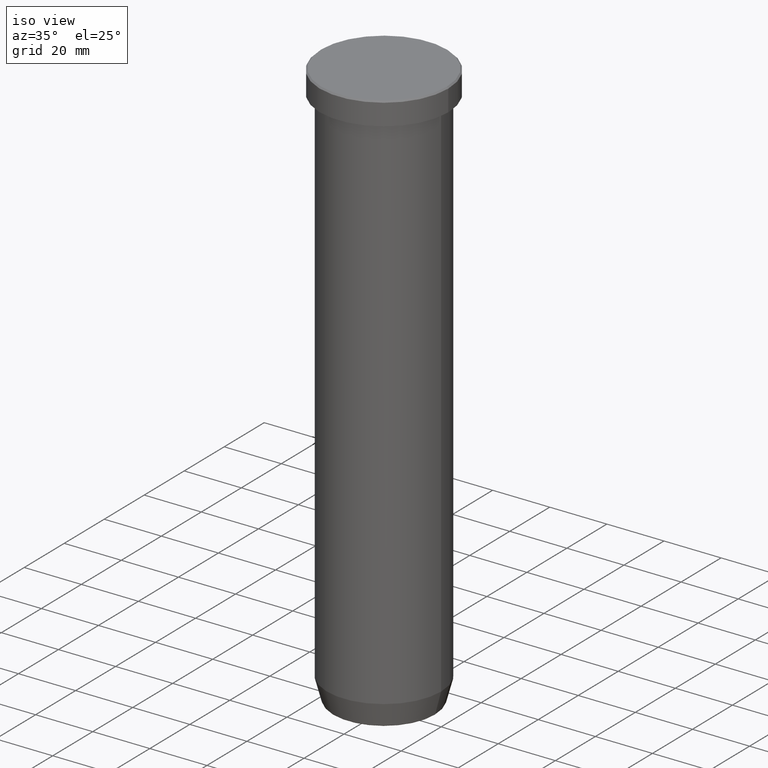
[diagram: clean part render]
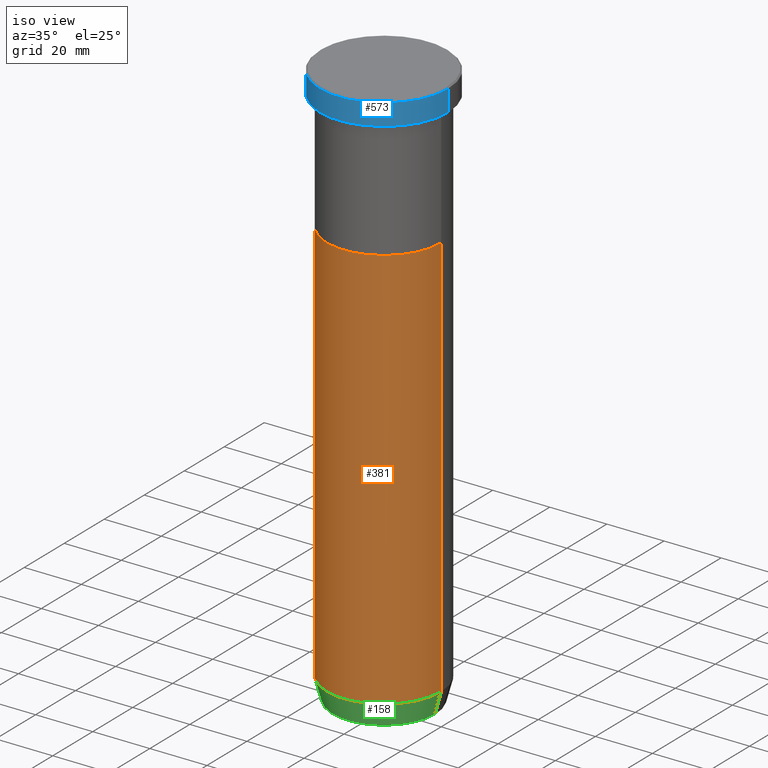
[diagram: same view with three faces highlighted in distinct colors, each labeled with its STEP entity id]
A machine part, iso view with three faces highlighted in distinct colors.
Their STEP definitions:

[orange] entity #381 — the highlighted cylindrical surface (partial cylindrical patch) has radius 20 mm, axis along (-0, -0, 1).
#3 = VECTOR ( 'NONE', #46, 1000.000000000000000 ) ;
#5 = ORIENTED_EDGE ( 'NONE', *, *, #14, .T. ) ;
#14 = EDGE_CURVE ( 'NONE', #201, #141, #471, .T. ) ;
#24 = ORIENTED_EDGE ( 'NONE', *, *, #98, .F. ) ;
#33 = CIRCLE ( 'NONE', #488, 20.00000000000000000 ) ;
#37 = CARTESIAN_POINT ( 'NONE',  ( -20.00000000000000000, 2.449293598294706513E-15, -50.00000000000000000 ) ) ;
#38 = DIRECTION ( 'NONE',  ( -0.000000000000000000, -0.000000000000000000, 1.000000000000000000 ) ) ;
#39 = AXIS2_PLACEMENT_3D ( 'NONE', #140, #38, #513 ) ;
#46 = DIRECTION ( 'NONE',  ( -0.000000000000000000, -0.000000000000000000, 1.000000000000000000 ) ) ;
#59 = EDGE_CURVE ( 'NONE', #257, #141, #86, .T. ) ;
#62 = CARTESIAN_POINT ( 'NONE',  ( -20.00000000000000000, 2.449293598294706513E-15, -192.0000000000000000 ) ) ;
#67 = DIRECTION ( 'NONE',  ( 1.000000000000000000, 0.000000000000000000, 0.000000000000000000 ) ) ;
#70 = LINE ( 'NONE', #579, #96 ) ;
#86 = CIRCLE ( 'NONE', #274, 20.00000000000000000 ) ;
#96 = VECTOR ( 'NONE', #220, 1000.000000000000000 ) ;
#98 = EDGE_CURVE ( 'NONE', #181, #257, #70, .T. ) ;
#107 = CARTESIAN_POINT ( 'NONE',  ( 0.000000000000000000, 0.000000000000000000, -50.00000000000000000 ) ) ;
#140 = CARTESIAN_POINT ( 'NONE',  ( 0.000000000000000000, 0.000000000000000000, 0.000000000000000000 ) ) ;
#141 = VERTEX_POINT ( 'NONE', #447 ) ;
#181 = VERTEX_POINT ( 'NONE', #62 ) ;
#190 = EDGE_CURVE ( 'NONE', #181, #201, #33, .T. ) ;
#201 = VERTEX_POINT ( 'NONE', #497 ) ;
#203 = ORIENTED_EDGE ( 'NONE', *, *, #190, .T. ) ;
#220 = DIRECTION ( 'NONE',  ( -0.000000000000000000, -0.000000000000000000, 1.000000000000000000 ) ) ;
#251 = CARTESIAN_POINT ( 'NONE',  ( 0.000000000000000000, 0.000000000000000000, -192.0000000000000000 ) ) ;
#257 = VERTEX_POINT ( 'NONE', #37 ) ;
#274 = AXIS2_PLACEMENT_3D ( 'NONE', #107, #531, #353 ) ;
#327 = CYLINDRICAL_SURFACE ( 'NONE', #39, 20.00000000000000000 ) ;
#336 = CARTESIAN_POINT ( 'NONE',  ( 20.00000000000000000, 0.000000000000000000, 0.000000000000000000 ) ) ;
#353 = DIRECTION ( 'NONE',  ( 1.000000000000000000, 0.000000000000000000, 0.000000000000000000 ) ) ;
#375 = FACE_OUTER_BOUND ( 'NONE', #515, .T. ) ;
#381 = ADVANCED_FACE ( 'NONE', ( #375 ), #327, .T. ) ;
#440 = DIRECTION ( 'NONE',  ( -0.000000000000000000, -0.000000000000000000, 1.000000000000000000 ) ) ;
#447 = CARTESIAN_POINT ( 'NONE',  ( 20.00000000000000000, 0.000000000000000000, -50.00000000000000000 ) ) ;
#471 = LINE ( 'NONE', #336, #3 ) ;
#488 = AXIS2_PLACEMENT_3D ( 'NONE', #251, #440, #67 ) ;
#497 = CARTESIAN_POINT ( 'NONE',  ( 20.00000000000000000, 0.000000000000000000, -192.0000000000000000 ) ) ;
#513 = DIRECTION ( 'NONE',  ( 1.000000000000000000, 0.000000000000000000, 0.000000000000000000 ) ) ;
#515 = EDGE_LOOP ( 'NONE', ( #24, #203, #5, #558 ) ) ;
#531 = DIRECTION ( 'NONE',  ( -0.000000000000000000, -0.000000000000000000, 1.000000000000000000 ) ) ;
#558 = ORIENTED_EDGE ( 'NONE', *, *, #59, .F. ) ;
#579 = CARTESIAN_POINT ( 'NONE',  ( -20.00000000000000000, 2.449293598294706513E-15, 0.000000000000000000 ) ) ;

[blue] entity #573 — the highlighted cylindrical surface (partial cylindrical patch) has radius 22.5 mm, axis along (-0, -0, 1).
#35 = DIRECTION ( 'NONE',  ( 1.000000000000000000, 0.000000000000000000, 0.000000000000000000 ) ) ;
#43 = VERTEX_POINT ( 'NONE', #253 ) ;
#50 = CARTESIAN_POINT ( 'NONE',  ( -22.50000000000000000, 2.755455298081544778E-15, 0.000000000000000000 ) ) ;
#72 = ORIENTED_EDGE ( 'NONE', *, *, #364, .F. ) ;
#80 = CARTESIAN_POINT ( 'NONE',  ( 0.000000000000000000, 0.000000000000000000, 0.000000000000000000 ) ) ;
#109 = CARTESIAN_POINT ( 'NONE',  ( -22.50000000000000000, 2.755455298081544778E-15, -0.5000000000000004441 ) ) ;
#128 = CYLINDRICAL_SURFACE ( 'NONE', #133, 22.50000000000000000 ) ;
#131 = CARTESIAN_POINT ( 'NONE',  ( 0.000000000000000000, 0.000000000000000000, -7.999999999999998224 ) ) ;
#133 = AXIS2_PLACEMENT_3D ( 'NONE', #80, #510, #276 ) ;
#205 = EDGE_CURVE ( 'NONE', #43, #495, #367, .T. ) ;
#216 = VECTOR ( 'NONE', #241, 1000.000000000000000 ) ;
#224 = DIRECTION ( 'NONE',  ( 1.000000000000000000, 0.000000000000000000, 0.000000000000000000 ) ) ;
#236 = DIRECTION ( 'NONE',  ( -0.000000000000000000, -0.000000000000000000, 1.000000000000000000 ) ) ;
#241 = DIRECTION ( 'NONE',  ( -0.000000000000000000, -0.000000000000000000, 1.000000000000000000 ) ) ;
#253 = CARTESIAN_POINT ( 'NONE',  ( 22.50000000000000000, 0.000000000000000000, -0.5000000000000004441 ) ) ;
#271 = CIRCLE ( 'NONE', #293, 22.50000000000000000 ) ;
#276 = DIRECTION ( 'NONE',  ( 1.000000000000000000, 0.000000000000000000, 0.000000000000000000 ) ) ;
#288 = LINE ( 'NONE', #50, #216 ) ;
#292 = CARTESIAN_POINT ( 'NONE',  ( 22.50000000000000000, 0.000000000000000000, 0.000000000000000000 ) ) ;
#293 = AXIS2_PLACEMENT_3D ( 'NONE', #131, #504, #35 ) ;
#322 = ORIENTED_EDGE ( 'NONE', *, *, #205, .T. ) ;
#337 = EDGE_CURVE ( 'NONE', #392, #374, #271, .T. ) ;
#348 = AXIS2_PLACEMENT_3D ( 'NONE', #366, #363, #224 ) ;
#363 = DIRECTION ( 'NONE',  ( 0.000000000000000000, 0.000000000000000000, -1.000000000000000000 ) ) ;
#364 = EDGE_CURVE ( 'NONE', #392, #495, #288, .T. ) ;
#366 = CARTESIAN_POINT ( 'NONE',  ( 0.000000000000000000, 0.000000000000000000, -0.5000000000000004441 ) ) ;
#367 = CIRCLE ( 'NONE', #348, 22.50000000000000000 ) ;
#374 = VERTEX_POINT ( 'NONE', #470 ) ;
#376 = ORIENTED_EDGE ( 'NONE', *, *, #337, .T. ) ;
#392 = VERTEX_POINT ( 'NONE', #429 ) ;
#405 = FACE_OUTER_BOUND ( 'NONE', #545, .T. ) ;
#429 = CARTESIAN_POINT ( 'NONE',  ( -22.50000000000000000, 2.755455298081544778E-15, -7.999999999999998224 ) ) ;
#451 = EDGE_CURVE ( 'NONE', #374, #43, #463, .T. ) ;
#463 = LINE ( 'NONE', #292, #505 ) ;
#470 = CARTESIAN_POINT ( 'NONE',  ( 22.50000000000000000, 0.000000000000000000, -7.999999999999998224 ) ) ;
#495 = VERTEX_POINT ( 'NONE', #109 ) ;
#504 = DIRECTION ( 'NONE',  ( -0.000000000000000000, -0.000000000000000000, 1.000000000000000000 ) ) ;
#505 = VECTOR ( 'NONE', #236, 1000.000000000000000 ) ;
#510 = DIRECTION ( 'NONE',  ( -0.000000000000000000, -0.000000000000000000, 1.000000000000000000 ) ) ;
#545 = EDGE_LOOP ( 'NONE', ( #72, #376, #551, #322 ) ) ;
#551 = ORIENTED_EDGE ( 'NONE', *, *, #451, .T. ) ;
#573 = ADVANCED_FACE ( 'NONE', ( #405 ), #128, .T. ) ;

[green] entity #158 — the highlighted conical surface has half-angle 15 deg.
#17 = DIRECTION ( 'NONE',  ( -0.2588190451025209060, 3.169619151431766790E-17, 0.9659258262890682012 ) ) ;
#33 = CIRCLE ( 'NONE', #488, 20.00000000000000000 ) ;
#36 = ORIENTED_EDGE ( 'NONE', *, *, #125, .F. ) ;
#55 = CONICAL_SURFACE ( 'NONE', #135, 17.85640646055101399, 0.2617993877991495744 ) ;
#62 = CARTESIAN_POINT ( 'NONE',  ( -20.00000000000000000, 2.449293598294706513E-15, -192.0000000000000000 ) ) ;
#64 = VECTOR ( 'NONE', #259, 1000.000000000000000 ) ;
#67 = DIRECTION ( 'NONE',  ( 1.000000000000000000, 0.000000000000000000, 0.000000000000000000 ) ) ;
#84 = CARTESIAN_POINT ( 'NONE',  ( 17.95570587970606269, 0.000000000000000000, -199.6294095225512706 ) ) ;
#125 = EDGE_CURVE ( 'NONE', #324, #181, #493, .T. ) ;
#135 = AXIS2_PLACEMENT_3D ( 'NONE', #355, #575, #215 ) ;
#146 = EDGE_CURVE ( 'NONE', #338, #201, #389, .T. ) ;
#158 = ADVANCED_FACE ( 'NONE', ( #207 ), #55, .T. ) ;
#162 = CARTESIAN_POINT ( 'NONE',  ( 17.85640646055101399, 0.000000000000000000, -200.0000000000000000 ) ) ;
#181 = VERTEX_POINT ( 'NONE', #62 ) ;
#190 = EDGE_CURVE ( 'NONE', #181, #201, #33, .T. ) ;
#201 = VERTEX_POINT ( 'NONE', #497 ) ;
#207 = FACE_OUTER_BOUND ( 'NONE', #242, .T. ) ;
#210 = CARTESIAN_POINT ( 'NONE',  ( -17.85640646055101399, 2.186779101618792051E-15, -200.0000000000000000 ) ) ;
#215 = DIRECTION ( 'NONE',  ( 1.000000000000000000, 0.000000000000000000, 0.000000000000000000 ) ) ;
#227 = CARTESIAN_POINT ( 'NONE',  ( -17.95570587970606269, 2.324116685748020582E-15, -199.6294095225512706 ) ) ;
#230 = ORIENTED_EDGE ( 'NONE', *, *, #415, .T. ) ;
#237 = ORIENTED_EDGE ( 'NONE', *, *, #146, .T. ) ;
#242 = EDGE_LOOP ( 'NONE', ( #36, #230, #237, #520 ) ) ;
#251 = CARTESIAN_POINT ( 'NONE',  ( 0.000000000000000000, 0.000000000000000000, -192.0000000000000000 ) ) ;
#259 = DIRECTION ( 'NONE',  ( 0.2588190451025209060, 0.000000000000000000, 0.9659258262890682012 ) ) ;
#310 = CIRCLE ( 'NONE', #456, 17.95570587970606269 ) ;
#324 = VERTEX_POINT ( 'NONE', #227 ) ;
#338 = VERTEX_POINT ( 'NONE', #84 ) ;
#355 = CARTESIAN_POINT ( 'NONE',  ( 0.000000000000000000, 0.000000000000000000, -200.0000000000000000 ) ) ;
#389 = LINE ( 'NONE', #162, #64 ) ;
#415 = EDGE_CURVE ( 'NONE', #324, #338, #310, .T. ) ;
#419 = DIRECTION ( 'NONE',  ( -0.000000000000000000, -0.000000000000000000, 1.000000000000000000 ) ) ;
#440 = DIRECTION ( 'NONE',  ( -0.000000000000000000, -0.000000000000000000, 1.000000000000000000 ) ) ;
#456 = AXIS2_PLACEMENT_3D ( 'NONE', #467, #419, #563 ) ;
#467 = CARTESIAN_POINT ( 'NONE',  ( 0.000000000000000000, 0.000000000000000000, -199.6294095225512706 ) ) ;
#488 = AXIS2_PLACEMENT_3D ( 'NONE', #251, #440, #67 ) ;
#493 = LINE ( 'NONE', #210, #584 ) ;
#497 = CARTESIAN_POINT ( 'NONE',  ( 20.00000000000000000, 0.000000000000000000, -192.0000000000000000 ) ) ;
#520 = ORIENTED_EDGE ( 'NONE', *, *, #190, .F. ) ;
#563 = DIRECTION ( 'NONE',  ( -1.000000000000000000, 0.000000000000000000, 0.000000000000000000 ) ) ;
#575 = DIRECTION ( 'NONE',  ( -0.000000000000000000, -0.000000000000000000, 1.000000000000000000 ) ) ;
#584 = VECTOR ( 'NONE', #17, 1000.000000000000000 ) ;